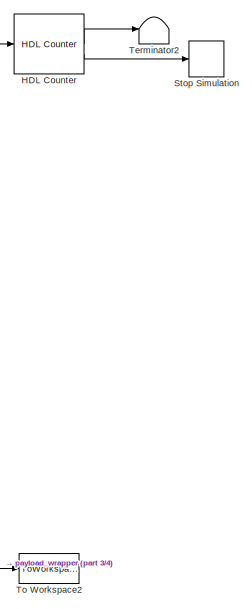
[diagram: root canvas - part 1/4, top right region]
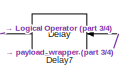
[diagram: root canvas - part 2/4, top center region]
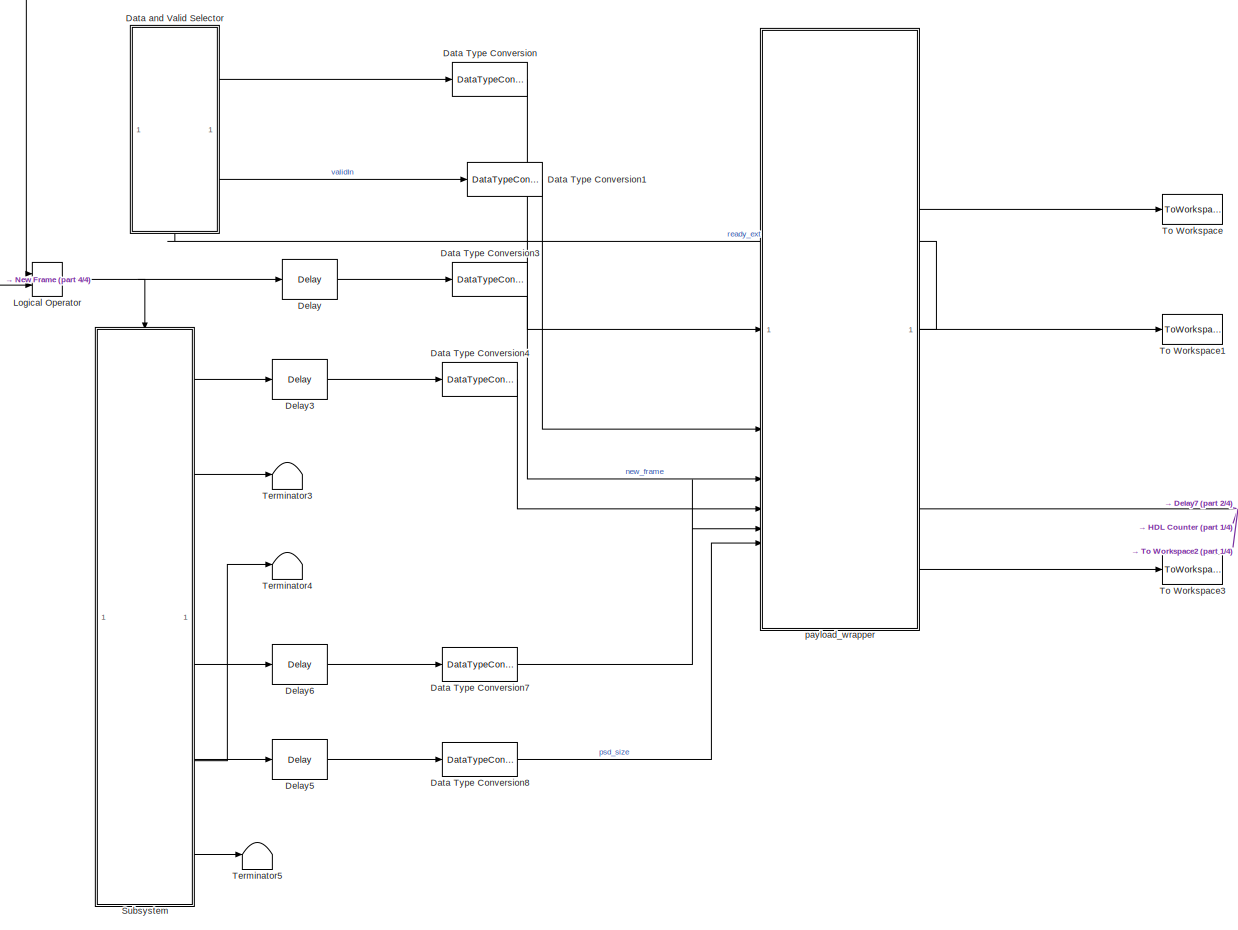
[diagram: root canvas - part 3/4, most of the canvas]
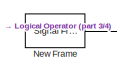
[diagram: root canvas - part 4/4, middle left region]
MODEL slx_420b3bf717e6
KIND model
CONFIG AbsTol = auto
CONFIG EnableMultiTasking = off
CONFIG FixedStep = auto
CONFIG MaxStep = auto
CONFIG MinStep = auto
CONFIG RelTol = 1e-3
CONFIG SampleTimeConstraint = Unconstrained
CONFIG SolverName = FixedStepDiscrete
CONFIG StartTime = 0.0
CONFIG StopTime = stopTime
BLOCK [DataTypeConversion] Data Type Conversion
  OutDataTypeStr = uint8
  RndMeth = Floor
  SaturateOnIntegerOverflow = off
BLOCK [DataTypeConversion] Data Type Conversion1
  OutDataTypeStr = boolean
  RndMeth = Floor
  SaturateOnIntegerOverflow = off
BLOCK [DataTypeConversion] Data Type Conversion3
  OutDataTypeStr = boolean
  RndMeth = Floor
  SaturateOnIntegerOverflow = off
BLOCK [DataTypeConversion] Data Type Conversion4
  OutDataTypeStr = boolean
  RndMeth = Floor
  SaturateOnIntegerOverflow = off
BLOCK [DataTypeConversion] Data Type Conversion7
  OutDataTypeStr = boolean
  RndMeth = Floor
  SaturateOnIntegerOverflow = off
BLOCK [DataTypeConversion] Data Type Conversion8
  OutDataTypeStr = boolean
  RndMeth = Floor
  SaturateOnIntegerOverflow = off
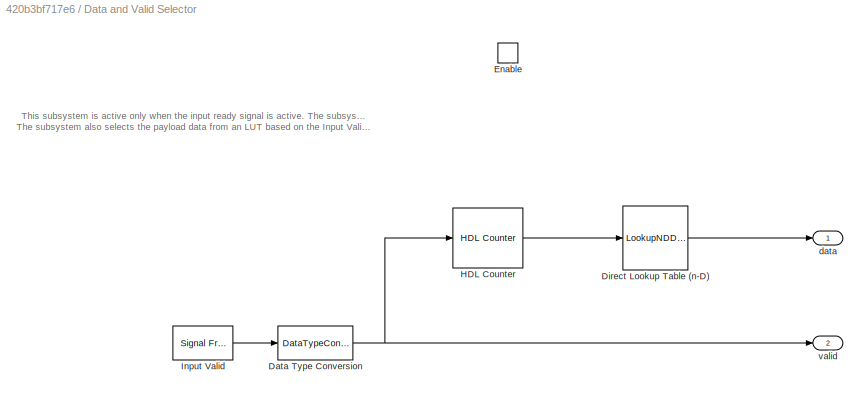
BLOCK [SubSystem] Data and Valid Selector
  TreatAsAtomicUnit = on
BLOCK [DataTypeConversion] Data and Valid Selector/Data Type Conversion
  OutDataTypeStr = boolean
  RndMeth = Floor
  SaturateOnIntegerOverflow = off
BLOCK [LookupNDDirect] Data and Valid Selector/Direct Lookup Table (n-D)
  DiagnosticForOutOfRangeInput = Error
  NumberOfTableDimensions = 1
  Table = uint8(pWords')
  TableDataTypeStr = uint8
BLOCK [EnablePort] Data and Valid Selector/Enable
BLOCK [Reference] Data and Valid Selector/HDL Counter  REF=hdlsllib/Sources/HDL Counter
  SourceBlock = hdlsllib/Sources/HDL Counter
  SourceType = HDL Counter
BLOCK [Reference] Data and Valid Selector/Input Valid  REF=dspsrcs4/Signal From
Workspace
  SourceBlock = dspsrcs4/Signal From\nWorkspace
  SourceType = Signal From Workspace
BLOCK [Outport] Data and Valid Selector/data
  InitialOutput = 0
  VectorParamsAs1DForOutWhenUnconnected = off
BLOCK [Outport] Data and Valid Selector/valid
  InitialOutput = 0
  Port = 2
  VectorParamsAs1DForOutWhenUnconnected = off
BLOCK [Delay] Delay
  DelayLength = 1
  InitialCondition = 0
  InputPortMap = u0
  UseCircularBuffer = on
  UserDataPersistent = on
BLOCK [Delay] Delay3
  DelayLength = 1
  InitialCondition = 0
  InputPortMap = u0
  UseCircularBuffer = on
  UserDataPersistent = on
BLOCK [Delay] Delay5
  DelayLength = 1
  InitialCondition = 0
  InputPortMap = u0
  UseCircularBuffer = on
  UserDataPersistent = on
BLOCK [Delay] Delay6
  DelayLength = 1
  InitialCondition = 0
  InputPortMap = u0
  UseCircularBuffer = on
  UserDataPersistent = on
BLOCK [Delay] Delay7
  DelayLength = 100
  InitialCondition = 0
  InputPortMap = u0
  NameLocation = top
  UseCircularBuffer = on
  UserDataPersistent = on
BLOCK [Reference] HDL Counter  REF=hdlsllib/Sources/HDL Counter
  SourceBlock = hdlsllib/Sources/HDL Counter
  SourceType = HDL Counter
BLOCK [Logic] Logical Operator
  AllPortsSameDT = off
  IconShape = distinctive
  Operator = OR
  OutDataTypeStr = boolean
BLOCK [Reference] New Frame  REF=dspsrcs4/Signal From
Workspace
  SourceBlock = dspsrcs4/Signal From\nWorkspace
  SourceType = Signal From Workspace
BLOCK [Stop] Stop Simulation
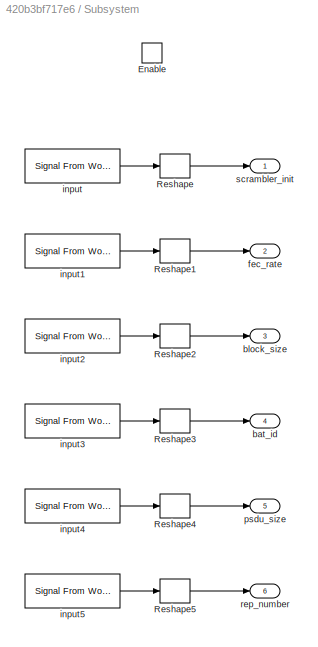
BLOCK [SubSystem] Subsystem
BLOCK [EnablePort] Subsystem/Enable
BLOCK [Reshape] Subsystem/Reshape
BLOCK [Reshape] Subsystem/Reshape1
BLOCK [Reshape] Subsystem/Reshape2
BLOCK [Reshape] Subsystem/Reshape3
BLOCK [Reshape] Subsystem/Reshape4
BLOCK [Reshape] Subsystem/Reshape5
BLOCK [Outport] Subsystem/bat_id
  Port = 4
BLOCK [Outport] Subsystem/block_size
  Port = 3
BLOCK [Outport] Subsystem/fec_rate
  Port = 2
BLOCK [Reference] Subsystem/input  REF=dspsrcs4/Signal From
Workspace
  SourceBlock = dspsrcs4/Signal From\nWorkspace
  SourceType = Signal From Workspace
BLOCK [Reference] Subsystem/input1  REF=dspsrcs4/Signal From
Workspace
  SourceBlock = dspsrcs4/Signal From\nWorkspace
  SourceType = Signal From Workspace
BLOCK [Reference] Subsystem/input2  REF=dspsrcs4/Signal From
Workspace
  SourceBlock = dspsrcs4/Signal From\nWorkspace
  SourceType = Signal From Workspace
BLOCK [Reference] Subsystem/input3  REF=dspsrcs4/Signal From
Workspace
  SourceBlock = dspsrcs4/Signal From\nWorkspace
  SourceType = Signal From Workspace
BLOCK [Reference] Subsystem/input4  REF=dspsrcs4/Signal From
Workspace
  SourceBlock = dspsrcs4/Signal From\nWorkspace
  SourceType = Signal From Workspace
BLOCK [Reference] Subsystem/input5  REF=dspsrcs4/Signal From
Workspace
  SourceBlock = dspsrcs4/Signal From\nWorkspace
  SourceType = Signal From Workspace
BLOCK [Outport] Subsystem/psdu_size
  Port = 5
BLOCK [Outport] Subsystem/rep_number
  Port = 6
BLOCK [Outport] Subsystem/scrambler_init
BLOCK [Terminator] Terminator2
BLOCK [Terminator] Terminator3
BLOCK [Terminator] Terminator4
BLOCK [Terminator] Terminator5
BLOCK [ToWorkspace] To Workspace
  MaxDataPoints = inf
  SampleTime = 1/CONST.fs
  Save2DSignal = 2-D array (concatenate along first dimension)
  VariableName = dataOut
BLOCK [ToWorkspace] To Workspace1
  MaxDataPoints = inf
  SampleTime = 1/CONST.fs
  Save2DSignal = 2-D array (concatenate along first dimension)
  VariableName = startOut
BLOCK [ToWorkspace] To Workspace2
  MaxDataPoints = inf
  SampleTime = 1/CONST.fs
  Save2DSignal = 2-D array (concatenate along first dimension)
  VariableName = endOut
BLOCK [ToWorkspace] To Workspace3
  MaxDataPoints = inf
  SampleTime = 1/CONST.fs
  Save2DSignal = 2-D array (concatenate along first dimension)
  VariableName = validOut
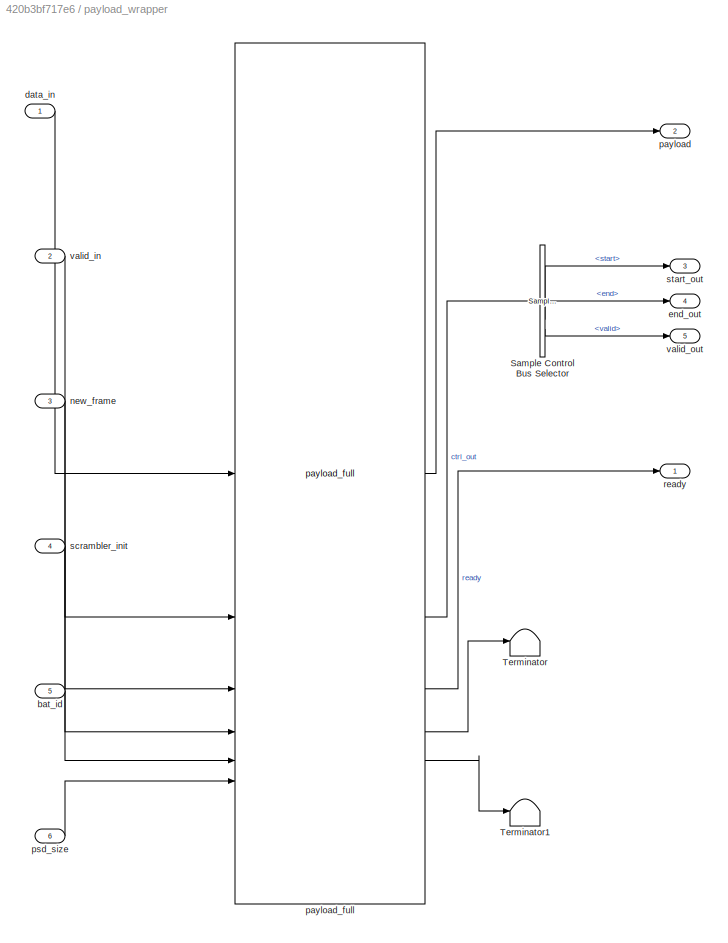
BLOCK [SubSystem] payload_wrapper
  TreatAsAtomicUnit = on
BLOCK [Reference] payload_wrapper/Sample Control Bus Selector  REF=whdlutilities/Sample Control
Bus Selector
  SourceBlock = whdlutilities/Sample Control\nBus Selector
BLOCK [Terminator] payload_wrapper/Terminator
BLOCK [Terminator] payload_wrapper/Terminator1
BLOCK [Inport] payload_wrapper/bat_id
  Port = 5
BLOCK [Inport] payload_wrapper/data_in
BLOCK [Outport] payload_wrapper/end_out
  Port = 4
  VectorParamsAs1DForOutWhenUnconnected = off
BLOCK [Inport] payload_wrapper/new_frame
  Port = 3
BLOCK [Outport] payload_wrapper/payload
  Port = 2
BLOCK [Reference] payload_wrapper/payload_full  REF=HDL_ieee_8021513/payload_full
  SourceBlock = HDL_ieee_8021513/payload_full
  SourceProductName = HDL IEEE 8021513
  SourceType = SubSystem
BLOCK [Inport] payload_wrapper/psd_size
  Port = 6
BLOCK [Outport] payload_wrapper/ready
BLOCK [Inport] payload_wrapper/scrambler_init
  Port = 4
BLOCK [Outport] payload_wrapper/start_out
  Port = 3
  VectorParamsAs1DForOutWhenUnconnected = off
BLOCK [Inport] payload_wrapper/valid_in
  Port = 2
BLOCK [Outport] payload_wrapper/valid_out
  Port = 5
  VectorParamsAs1DForOutWhenUnconnected = off
ANNOTATION Data and Valid Selector: This subsystem is active only when the input ready signal is active. The subsystem selects the Input Valid value and outputs the valid signal. The subsystem also selects the payload data from an LUT based on the Input Valid signal and outputs it as data signal.
LINE Data Type Conversion1:1 -> payload_wrapper:2
LINE Data Type Conversion3:1 -> payload_wrapper:3
LINE Data Type Conversion4:1 -> payload_wrapper:4
LINE Data Type Conversion7:1 -> payload_wrapper:5
LINE Data Type Conversion8:1 -> payload_wrapper:6
LINE Data Type Conversion:1 -> payload_wrapper:1
NET Data and Valid Selector/Data Type Conversion:1 -> Data and Valid Selector/HDL Counter:1, Data and Valid Selector/valid:1
LINE Data and Valid Selector/Direct Lookup Table (n-D):1 -> Data and Valid Selector/data:1
LINE Data and Valid Selector/HDL Counter:1 -> Data and Valid Selector/Direct Lookup Table (n-D):1
LINE Data and Valid Selector/Input Valid:1 -> Data and Valid Selector/Data Type Conversion:1
LINE Data and Valid Selector:1 -> Data Type Conversion:1
LINE Data and Valid Selector:2 -> Data Type Conversion1:1
LINE Delay3:1 -> Data Type Conversion4:1
LINE Delay5:1 -> Data Type Conversion8:1
LINE Delay6:1 -> Data Type Conversion7:1
LINE Delay7:1 -> Logical Operator:1
LINE Delay:1 -> Data Type Conversion3:1
LINE HDL Counter:1 -> Terminator2:1
LINE HDL Counter:2 -> Stop Simulation:1
NET Logical Operator:1 -> Delay:1, Subsystem:enable
LINE New Frame:1 -> Logical Operator:2
LINE Subsystem/Reshape1:1 -> Subsystem/fec_rate:1
LINE Subsystem/Reshape2:1 -> Subsystem/block_size:1
LINE Subsystem/Reshape3:1 -> Subsystem/bat_id:1
LINE Subsystem/Reshape4:1 -> Subsystem/psdu_size:1
LINE Subsystem/Reshape5:1 -> Subsystem/rep_number:1
LINE Subsystem/Reshape:1 -> Subsystem/scrambler_init:1
LINE Subsystem/input1:1 -> Subsystem/Reshape1:1
LINE Subsystem/input2:1 -> Subsystem/Reshape2:1
LINE Subsystem/input3:1 -> Subsystem/Reshape3:1
LINE Subsystem/input4:1 -> Subsystem/Reshape4:1
LINE Subsystem/input5:1 -> Subsystem/Reshape5:1
LINE Subsystem/input:1 -> Subsystem/Reshape:1
LINE Subsystem:1 -> Delay3:1
LINE Subsystem:2 -> Terminator3:1
LINE Subsystem:3 -> Terminator4:1
LINE Subsystem:4 -> Delay6:1
LINE Subsystem:5 -> Delay5:1
LINE Subsystem:6 -> Terminator5:1
LINE payload_wrapper/Sample Control Bus Selector:1 -> payload_wrapper/start_out:1
LINE payload_wrapper/Sample Control Bus Selector:2 -> payload_wrapper/end_out:1
LINE payload_wrapper/Sample Control Bus Selector:3 -> payload_wrapper/valid_out:1
LINE payload_wrapper/bat_id:1 -> payload_wrapper/payload_full:5
LINE payload_wrapper/data_in:1 -> payload_wrapper/payload_full:1
LINE payload_wrapper/new_frame:1 -> payload_wrapper/payload_full:3
LINE payload_wrapper/payload_full:1 -> payload_wrapper/payload:1
LINE payload_wrapper/payload_full:2 -> payload_wrapper/Sample Control Bus Selector:1
LINE payload_wrapper/payload_full:3 -> payload_wrapper/ready:1
LINE payload_wrapper/payload_full:4 -> payload_wrapper/Terminator:1
LINE payload_wrapper/payload_full:5 -> payload_wrapper/Terminator1:1
LINE payload_wrapper/psd_size:1 -> payload_wrapper/payload_full:6
LINE payload_wrapper/scrambler_init:1 -> payload_wrapper/payload_full:4
LINE payload_wrapper/valid_in:1 -> payload_wrapper/payload_full:2
LINE payload_wrapper:1 -> Data and Valid Selector:enable
LINE payload_wrapper:2 -> To Workspace:1
LINE payload_wrapper:3 -> To Workspace1:1
NET payload_wrapper:4 -> Delay7:1, HDL Counter:1, To Workspace2:1
LINE payload_wrapper:5 -> To Workspace3:1
note: NET lines group one-source signal fan-out (src -> all destinations, sorted); 1:1 wires keep LINE
